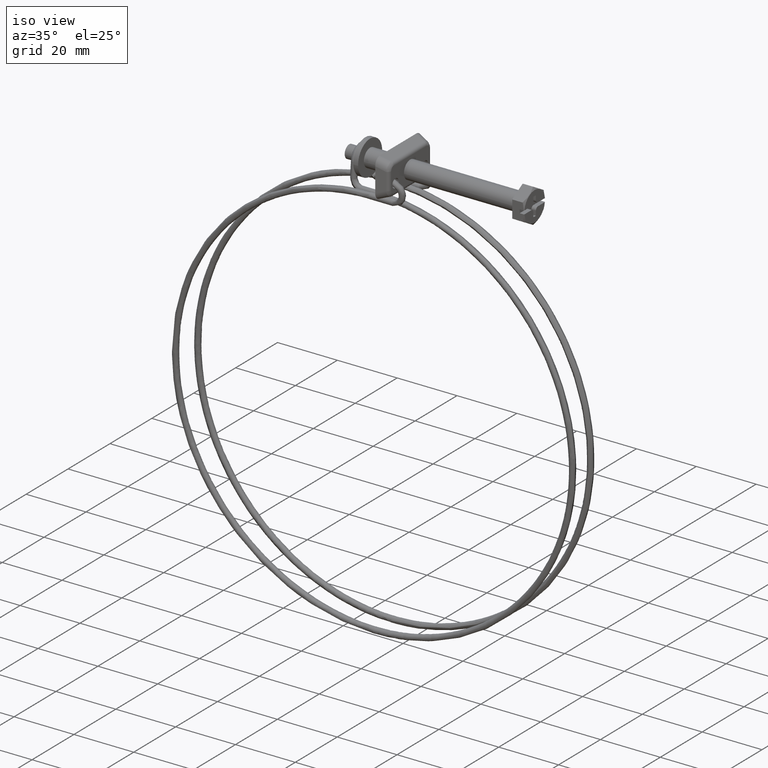
[diagram: clean part render]
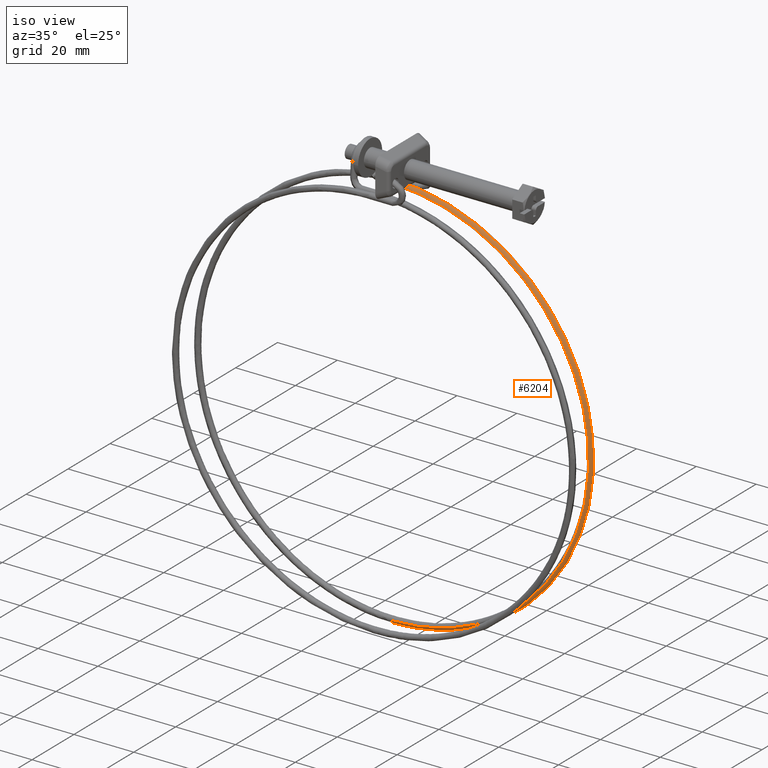
[diagram: same view with one face highlighted and labeled with its STEP entity id]
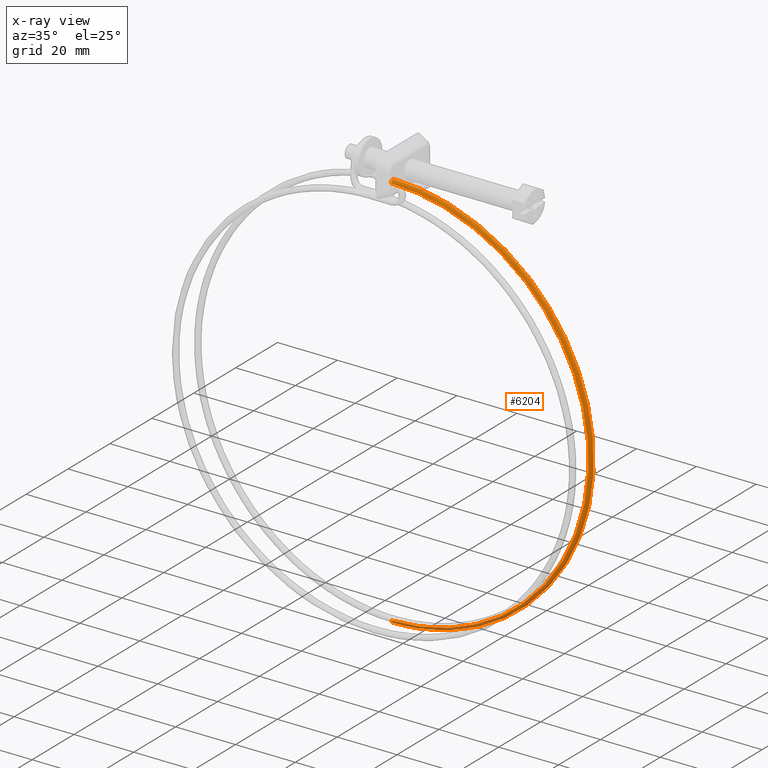
[diagram: x-ray of the same camera — body ghosted, the highlighted face saturated]
A machine part, iso view. The second image highlights one B-rep face of the part: STEP entity #6204.
The next image is the same camera in x-ray: the body ghosted, the highlighted face saturated — about 0% of this face is hidden behind the body in this view.
In plain terms, the highlighted face is a freeform B-spline surface patch.
Its self-contained STEP definition (entity closure, byte-faithful):
#5489=CARTESIAN_POINT('',(-46.299999999998690,3.300317810718986,-7.824870904489632));
#5490=VERTEX_POINT('',#5489);
#5506=CARTESIAN_POINT('',(-46.299999999965223,4.325132096602051,-6.850316810745772));
#5507=VERTEX_POINT('',#5506);
#5508=CARTESIAN_POINT('',(-46.299999999998690,3.300317810718986,-7.824870904489632));
#5509=CARTESIAN_POINT('',(-46.299999999981949,3.337389172250566,-6.850158905406359));
#5510=CARTESIAN_POINT('',(-46.299999999965223,4.325132096602051,-6.850316810745772));
#5518=(BOUNDED_CURVE()B_SPLINE_CURVE(2,(#5508,#5509,#5510),.UNSPECIFIED.,.F.,.U.)B_SPLINE_CURVE_WITH_KNOTS((3,3),(0.754420108253642,1.0),.UNSPECIFIED.)CURVE()GEOMETRIC_REPRESENTATION_ITEM()RATIONAL_B_SPLINE_CURVE((0.989826157628572,0.712285260122201,1.0))REPRESENTATION_ITEM(''));
#5519=EDGE_CURVE('',#5490,#5507,#5518,.T.);
#6083=CARTESIAN_POINT('',(-46.300000014584718,3.300324978305354,-139.875129956719410));
#6084=VERTEX_POINT('',#6083);
#6096=CARTESIAN_POINT('',(-46.300000014584718,3.300324978305354,-139.875129956719460));
#6097=CARTESIAN_POINT('',(19.311579814030885,3.300324978305354,-139.875129971212770));
#6098=CARTESIAN_POINT('',(19.723826815901759,3.300321417029658,-74.264845824761736));
#6099=CARTESIAN_POINT('',(20.141286987299903,3.300317810718985,-7.824870904491036));
#6100=CARTESIAN_POINT('',(-46.299999999998690,3.300317810718986,-7.824870904489632));
#6108=(BOUNDED_CURVE()B_SPLINE_CURVE(2,(#6096,#6097,#6098,#6099,#6100),.UNSPECIFIED.,.F.,.U.)B_SPLINE_CURVE_WITH_KNOTS((3,2,3),(-3.792515021086194,-2.0,-0.192000658020310),.UNSPECIFIED.)CURVE()GEOMETRIC_REPRESENTATION_ITEM()RATIONAL_B_SPLINE_CURVE((0.934811369346935,0.685815180480386,1.0,0.683101151025638,0.939155212471044))REPRESENTATION_ITEM(''));
#6109=EDGE_CURVE('',#6084,#5490,#6108,.T.);
#6115=CARTESIAN_POINT('',(-46.299999988833903,4.312567047722875,-140.849843094641610));
#6116=VERTEX_POINT('',#6115);
#6117=CARTESIAN_POINT('',(-46.299999988833903,4.312567047722875,-140.849843094641610));
#6118=CARTESIAN_POINT('',(20.280029760730670,4.312567047723398,-140.849843083545490));
#6119=CARTESIAN_POINT('',(20.698361672861640,4.318810098156421,-74.271049110172882));
#6120=CARTESIAN_POINT('',(21.121983702893331,4.325132096601521,-6.850316810814584));
#6121=CARTESIAN_POINT('',(-46.299999999965223,4.325132096602052,-6.850316810745772));
#6129=(BOUNDED_CURVE()B_SPLINE_CURVE(2,(#6117,#6118,#6119,#6120,#6121),.UNSPECIFIED.,.F.,.U.)B_SPLINE_CURVE_WITH_KNOTS((3,2,3),(-3.792515020609750,-2.0,-0.192000658021544),.UNSPECIFIED.)CURVE()GEOMETRIC_REPRESENTATION_ITEM()RATIONAL_B_SPLINE_CURVE((0.934811369214570,0.685815180563896,1.0,0.683101151025854,0.939155212470694))REPRESENTATION_ITEM(''));
#6130=EDGE_CURVE('',#6116,#5507,#6129,.T.);
#6157=CARTESIAN_POINT('',(-55.798186366543447,4.332387542299447,-140.172830383331670));
#6158=CARTESIAN_POINT('',(20.215700219793149,4.332387542299446,-151.058886782846060));
#6159=CARTESIAN_POINT('',(20.698179288806543,4.332387542299446,-74.270968515440131));
#6160=CARTESIAN_POINT('',(21.186471575931865,4.332387542299447,3.442139974539118));
#6161=CARTESIAN_POINT('',(-55.751083841685613,4.332387542299446,-7.520443064781063));
#6162=CARTESIAN_POINT('',(-55.798199275178490,4.328765280009620,-140.172920520244820));
#6163=CARTESIAN_POINT('',(20.215790618829942,4.328765280009619,-151.058991714597280));
#6164=CARTESIAN_POINT('',(20.698270343562861,4.328765280009621,-74.270969087561554));
#6165=CARTESIAN_POINT('',(21.186563294308236,4.328765280009622,3.442245019439393));
#6166=CARTESIAN_POINT('',(-55.751096686305353,4.328765280009620,-7.520352918723383));
#6167=CARTESIAN_POINT('',(-55.801774791465462,3.325447906161242,-140.197887218886790));
#6168=CARTESIAN_POINT('',(20.240829922155687,3.325447906161243,-151.088056382099410));
#6169=CARTESIAN_POINT('',(20.723491272275062,3.325447906161243,-74.271127557415667));
#6170=CARTESIAN_POINT('',(21.211968036746342,3.325447906161241,3.471341027692523));
#6171=CARTESIAN_POINT('',(-55.754654471223603,3.325447906161243,-7.495383687171822));
#6172=CARTESIAN_POINT('',(-55.656617926478120,3.299708425431836,-139.184302770356030));
#6173=CARTESIAN_POINT('',(19.224297908175256,3.299708425431837,-149.908104823254260));
#6174=CARTESIAN_POINT('',(19.699585729667454,3.299708425431837,-74.264694084493073));
#6175=CARTESIAN_POINT('',(20.180600124496642,3.299708425431836,2.290117114088929));
#6176=CARTESIAN_POINT('',(-55.610217454697604,3.299708425431838,-8.509070965386119));
#6177=CARTESIAN_POINT('',(-55.653249670792725,3.299111160174604,-139.160783306900560));
#6178=CARTESIAN_POINT('',(19.200710048684350,3.299111160174605,-149.880724936351270));
#6179=CARTESIAN_POINT('',(19.675826773000246,3.299111160174605,-74.264544800601129));
#6180=CARTESIAN_POINT('',(20.156668009164321,3.299111160174604,2.262707703152353));
#6181=CARTESIAN_POINT('',(-55.606865902553402,3.299111160174606,-8.532592814926899));
#6189=(BOUNDED_SURFACE()B_SPLINE_SURFACE(2,2,((#6157,#6162,#6167,#6172,#6177),(#6158,#6163,#6168,#6173,#6178),(#6159,#6164,#6169,#6174,#6179),(#6160,#6165,#6170,#6175,#6180),(#6161,#6166,#6171,#6176,#6181)),.UNSPECIFIED.,.F.,.F.,.U.)B_SPLINE_SURFACE_WITH_KNOTS((3,2,3),(3,1,1,3),(0.0,121.840583907405500,244.637694022931300),(0.0,0.008528609226833,1.665382858719218,1.722778827931236),.UNSPECIFIED.)GEOMETRIC_REPRESENTATION_ITEM()RATIONAL_B_SPLINE_SURFACE(((0.993431406148873,0.991938152631512,0.700350304555242,1.000494220243621,1.010543541373091),(0.656265448546266,0.655278998265654,0.462654697560047,0.660931176679279,0.667569805373517),(1.003015318709192,1.001507659354596,0.707106781186548,1.010146269760648,1.020292539521296),(0.653543241151682,0.652560882694362,0.460735592963536,0.658189615714196,0.664800707191350),(0.998767492743257,0.997266218410340,0.704112144424989,1.005868243818229,1.015971543559035)))REPRESENTATION_ITEM('')SURFACE());
#6190=CARTESIAN_POINT('',(-46.300000014584718,3.300324978305354,-139.875129956719410));
#6191=CARTESIAN_POINT('',(-46.300000011236229,3.308607261220300,-140.128357359828700));
#6192=CARTESIAN_POINT('',(-46.300000006614283,3.417583925489859,-140.377863556585400));
#6193=CARTESIAN_POINT('',(-46.299999997113403,3.786538115457295,-140.742120829272210));
#6194=CARTESIAN_POINT('',(-46.299999992290473,4.049080069537564,-140.849864315853410));
#6195=CARTESIAN_POINT('',(-46.299999988833903,4.312567047722875,-140.849843094641610));
#6196=B_SPLINE_CURVE_WITH_KNOTS('',3,(#6190,#6191,#6192,#6193,#6194,#6195),.UNSPECIFIED.,.F.,.U.,(4,2,4),(0.754000539280956,0.875000000000000,1.0),.UNSPECIFIED.);
#6197=EDGE_CURVE('',#6084,#6116,#6196,.T.);
#6198=ORIENTED_EDGE('',*,*,#6197,.T.);
#6199=ORIENTED_EDGE('',*,*,#6130,.T.);
#6200=ORIENTED_EDGE('',*,*,#5519,.F.);
#6201=ORIENTED_EDGE('',*,*,#6109,.F.);
#6202=EDGE_LOOP('',(#6198,#6199,#6200,#6201));
#6203=FACE_OUTER_BOUND('',#6202,.T.);
#6204=ADVANCED_FACE('',(#6203),#6189,.T.);